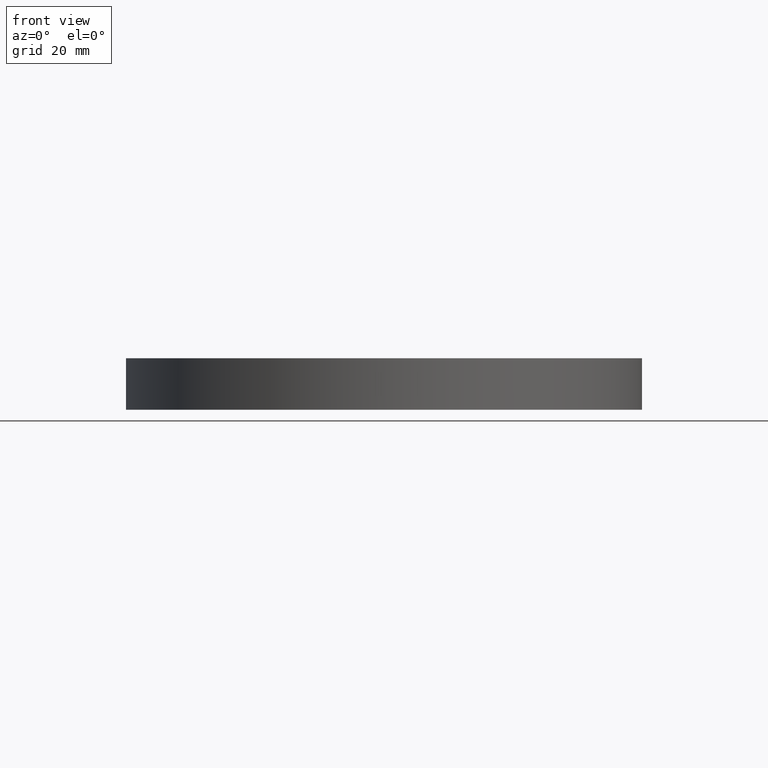
[diagram: clean part render]
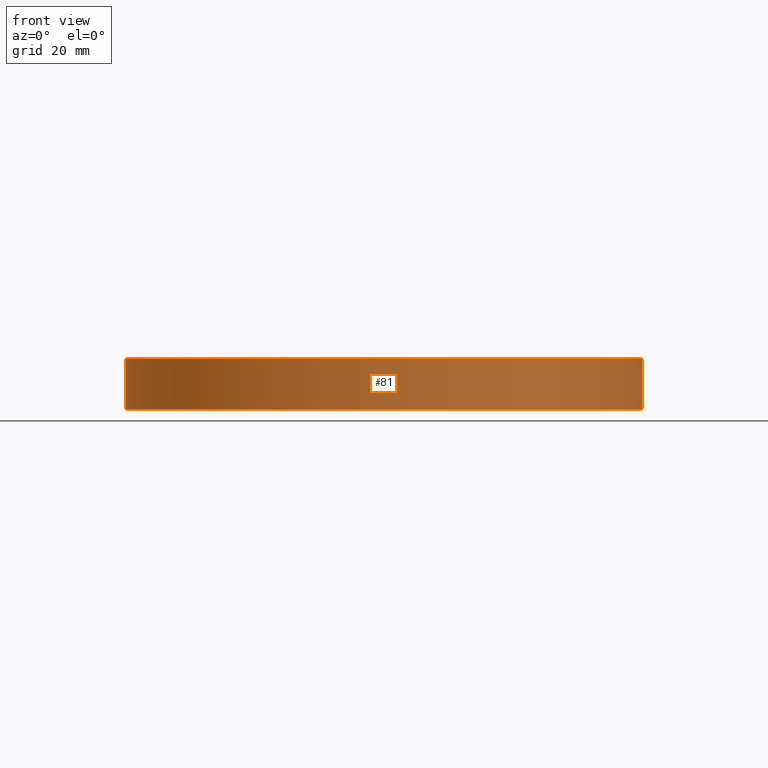
[diagram: same view with one face highlighted and labeled with its STEP entity id]
A machine part, front view. The second image highlights one B-rep face of the part: STEP entity #81.
In plain terms, the highlighted cylindrical surface (partial cylindrical patch) has radius 60 mm, axis along (-0, -0, -1).
Its self-contained STEP definition (entity closure, byte-faithful):
#8 = EDGE_CURVE ( 'NONE', #221, #143, #104, .T. ) ;
#18 = CARTESIAN_POINT ( 'NONE',  ( -60.00000000000000000, 0.0000000000000000000, 90.85281374238590500 ) ) ;
#22 = EDGE_CURVE ( 'NONE', #173, #221, #254, .T. ) ;
#25 = EDGE_CURVE ( 'NONE', #144, #143, #257, .T. ) ;
#41 = DIRECTION ( 'NONE',  ( 0.0000000000000000000, 0.0000000000000000000, -1.000000000000000000 ) ) ;
#42 = CARTESIAN_POINT ( 'NONE',  ( 0.0000000000000000000, 60.00000000000000000, -6.000000000000000000 ) ) ;
#58 = DIRECTION ( 'NONE',  ( 1.000000000000000000, 0.0000000000000000000, 0.0000000000000000000 ) ) ;
#59 = DIRECTION ( 'NONE',  ( 0.0000000000000000000, 0.0000000000000000000, 1.000000000000000000 ) ) ;
#61 = CARTESIAN_POINT ( 'NONE',  ( 0.0000000000000000000, 0.0000000000000000000, -6.000000000000000000 ) ) ;
#75 = ORIENTED_EDGE ( 'NONE', *, *, #25, .F. ) ;
#81 = ADVANCED_FACE ( 'NONE', ( #185 ), #167, .T. ) ;
#82 = DIRECTION ( 'NONE',  ( -0.0000000000000000000, -0.0000000000000000000, -1.000000000000000000 ) ) ;
#93 = DIRECTION ( 'NONE',  ( -1.000000000000000000, 0.0000000000000000000, 0.0000000000000000000 ) ) ;
#104 = CIRCLE ( 'NONE', #267, 60.00000000000000000 ) ;
#107 = ORIENTED_EDGE ( 'NONE', *, *, #8, .T. ) ;
#114 = CIRCLE ( 'NONE', #175, 60.00000000000000000 ) ;
#118 = DIRECTION ( 'NONE',  ( 1.000000000000000000, 0.0000000000000000000, 0.0000000000000000000 ) ) ;
#119 = DIRECTION ( 'NONE',  ( 0.0000000000000000000, 0.0000000000000000000, 1.000000000000000000 ) ) ;
#128 = CARTESIAN_POINT ( 'NONE',  ( 0.0000000000000000000, 0.0000000000000000000, 6.000000000000000000 ) ) ;
#143 = VERTEX_POINT ( 'NONE', #42 ) ;
#144 = VERTEX_POINT ( 'NONE', #249 ) ;
#163 = CARTESIAN_POINT ( 'NONE',  ( -60.00000000000000000, 0.0000000000000000000, -6.000000000000000000 ) ) ;
#167 = CYLINDRICAL_SURFACE ( 'NONE', #225, 60.00000000000000000 ) ;
#173 = VERTEX_POINT ( 'NONE', #269 ) ;
#175 = AXIS2_PLACEMENT_3D ( 'NONE', #128, #119, #118 ) ;
#185 = FACE_OUTER_BOUND ( 'NONE', #205, .T. ) ;
#195 = VECTOR ( 'NONE', #273, 1000.000000000000000 ) ;
#199 = CARTESIAN_POINT ( 'NONE',  ( 0.0000000000000000000, 0.0000000000000000000, 6.000000000000000000 ) ) ;
#205 = EDGE_LOOP ( 'NONE', ( #231, #223, #107, #75 ) ) ;
#221 = VERTEX_POINT ( 'NONE', #163 ) ;
#223 = ORIENTED_EDGE ( 'NONE', *, *, #22, .T. ) ;
#225 = AXIS2_PLACEMENT_3D ( 'NONE', #199, #82, #93 ) ;
#231 = ORIENTED_EDGE ( 'NONE', *, *, #260, .F. ) ;
#249 = CARTESIAN_POINT ( 'NONE',  ( 5.607822545531560500E-013, 60.00000000000000000, 6.000000000000000000 ) ) ;
#254 = LINE ( 'NONE', #18, #255 ) ;
#255 = VECTOR ( 'NONE', #41, 1000.000000000000000 ) ;
#257 = LINE ( 'NONE', #275, #195 ) ;
#260 = EDGE_CURVE ( 'NONE', #173, #144, #114, .T. ) ;
#267 = AXIS2_PLACEMENT_3D ( 'NONE', #61, #59, #58 ) ;
#269 = CARTESIAN_POINT ( 'NONE',  ( -60.00000000000000000, 0.0000000000000000000, 6.000000000000000000 ) ) ;
#273 = DIRECTION ( 'NONE',  ( 0.0000000000000000000, 0.0000000000000000000, -1.000000000000000000 ) ) ;
#275 = CARTESIAN_POINT ( 'NONE',  ( 0.0000000000000000000, 60.00000000000000000, 90.85281374238590500 ) ) ;